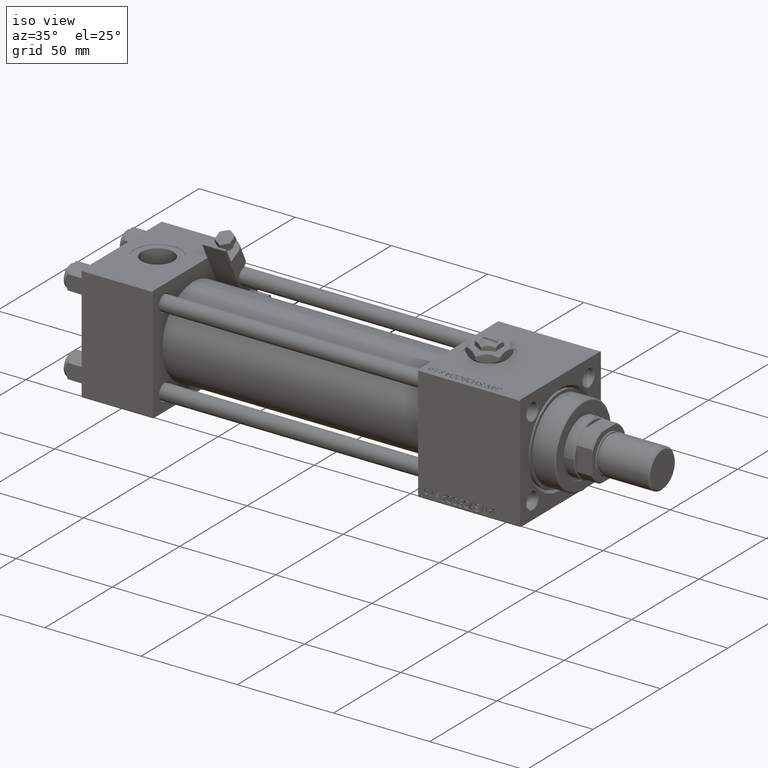
[diagram: clean part render]
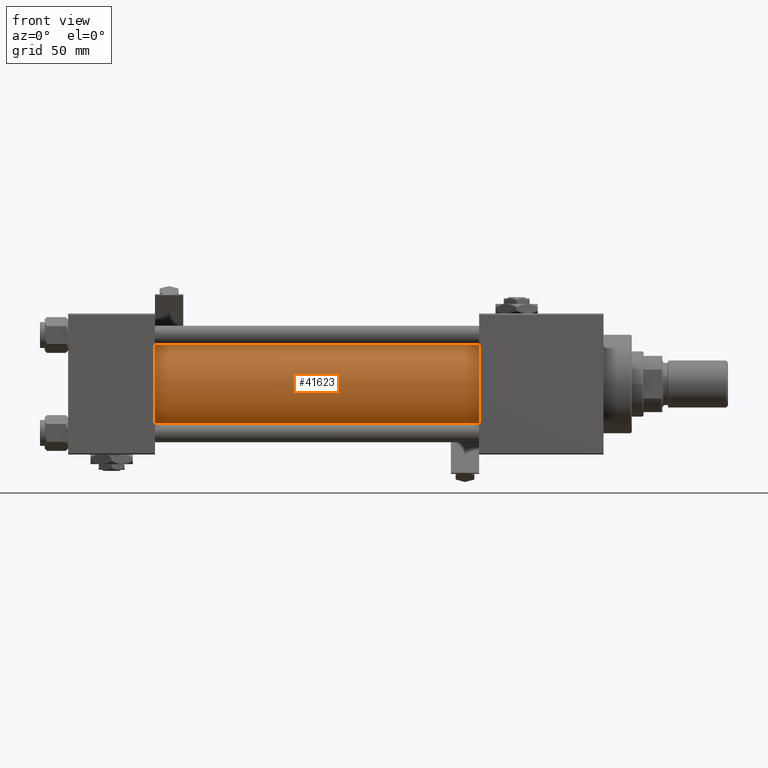
[diagram: tour spotlight — one face highlighted and labeled with its STEP entity id]
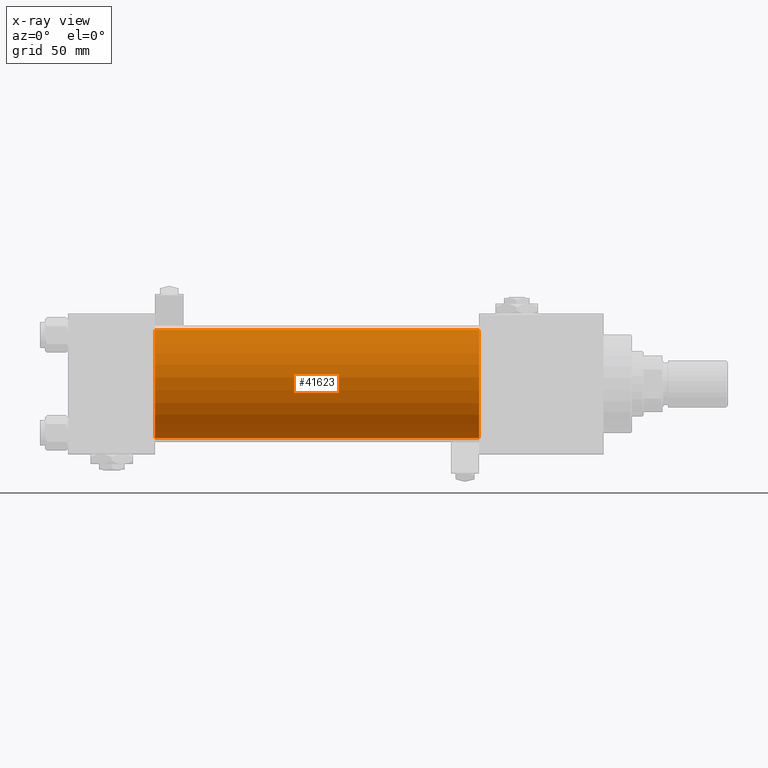
[diagram: x-ray of the same camera — body ghosted, this tour face saturated]
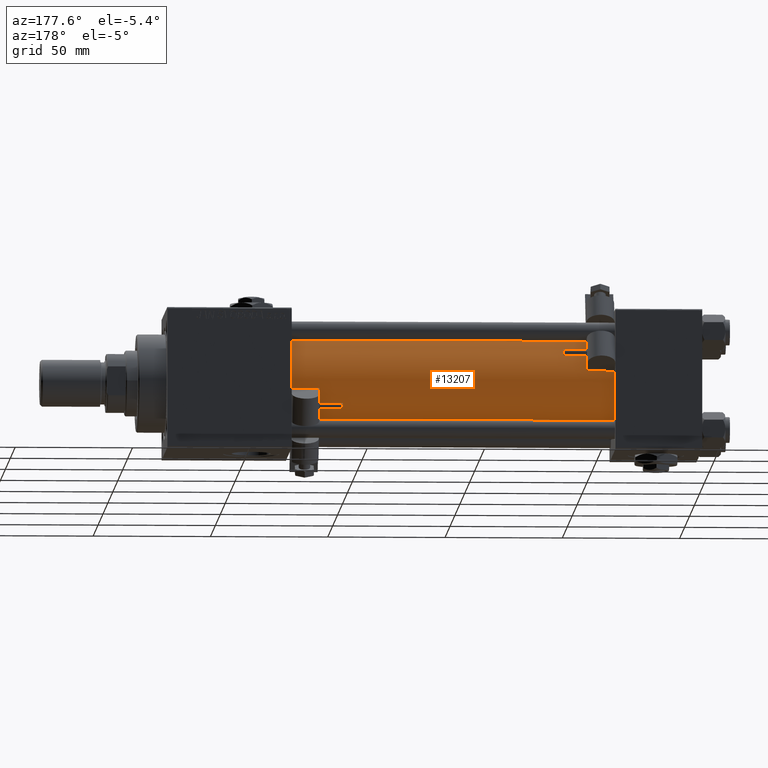
[diagram: tour spotlight — one face highlighted and labeled with its STEP entity id]
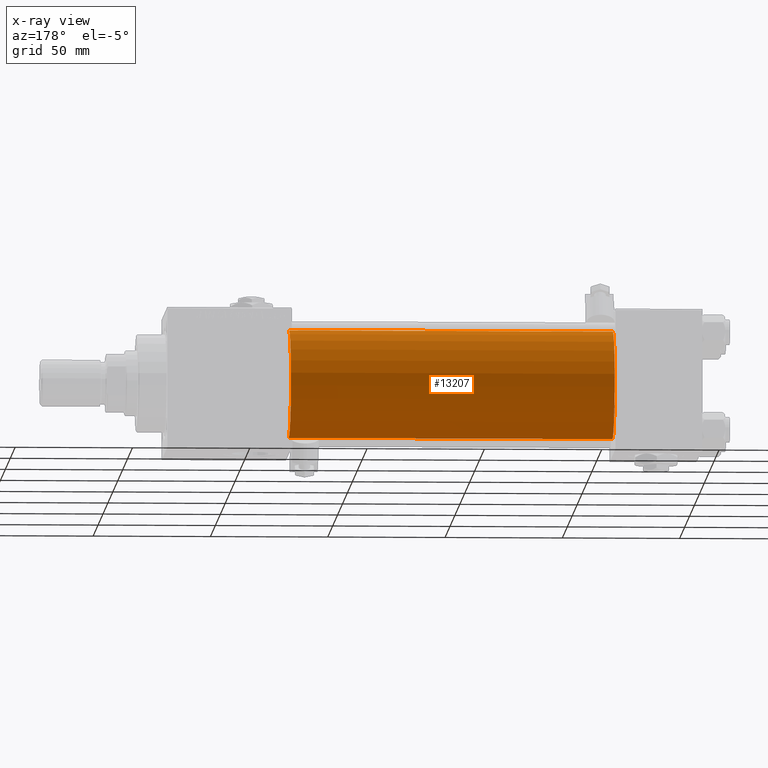
[diagram: x-ray of the same camera — body ghosted, this tour face saturated]
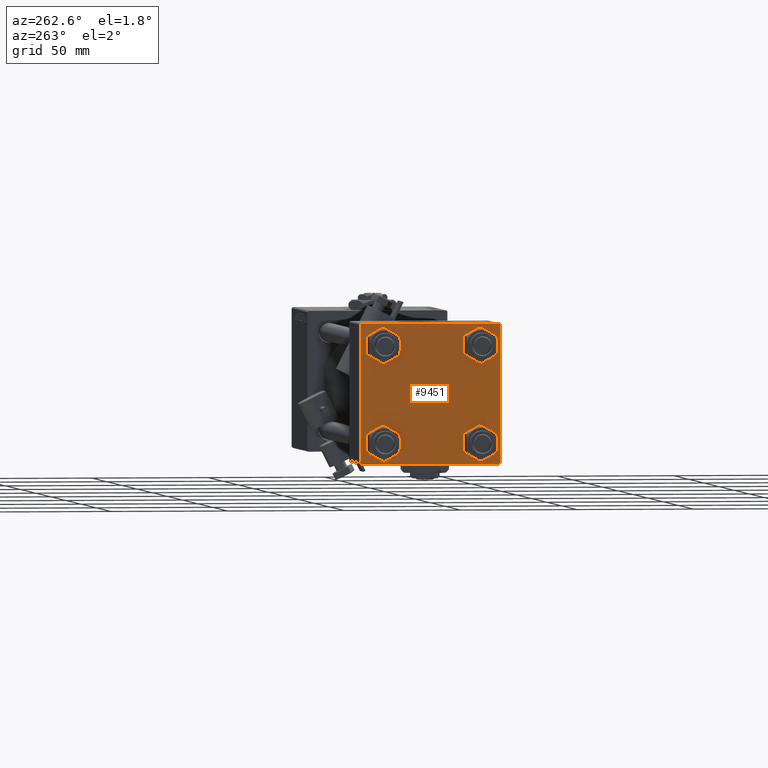
[diagram: tour spotlight — one face highlighted and labeled with its STEP entity id]
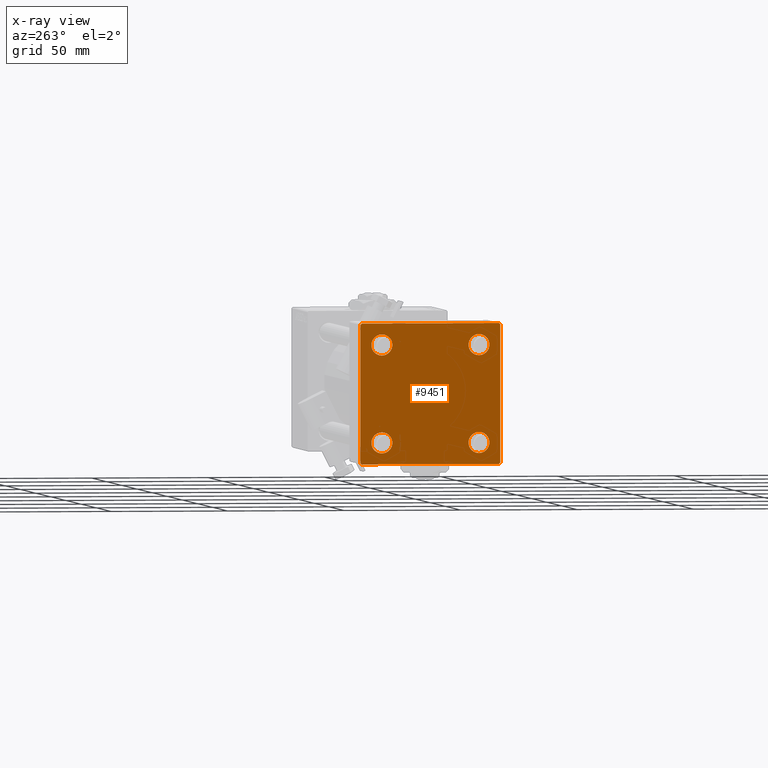
[diagram: x-ray of the same camera — body ghosted, this tour face saturated]
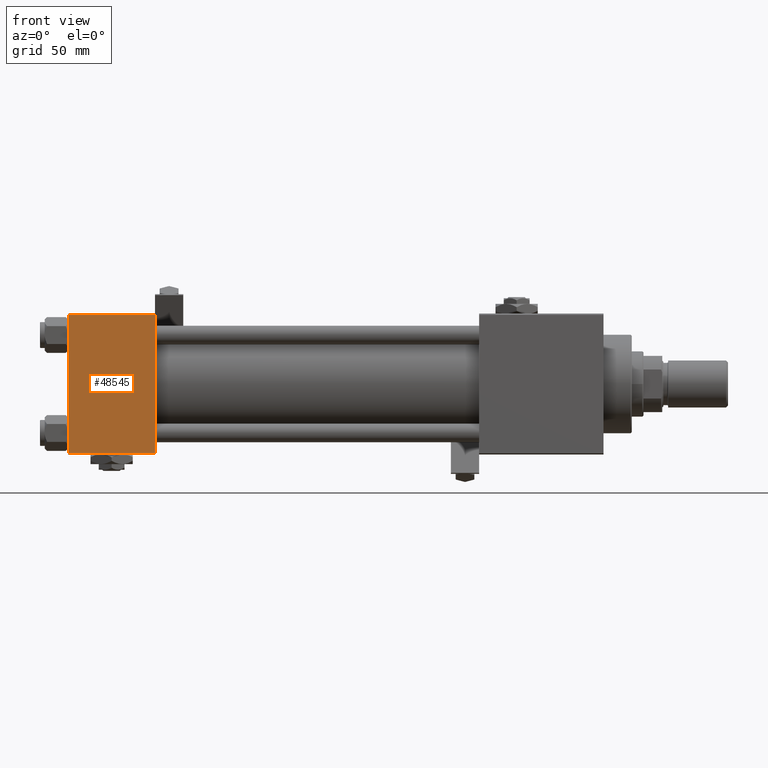
[diagram: tour spotlight — one face highlighted and labeled with its STEP entity id]
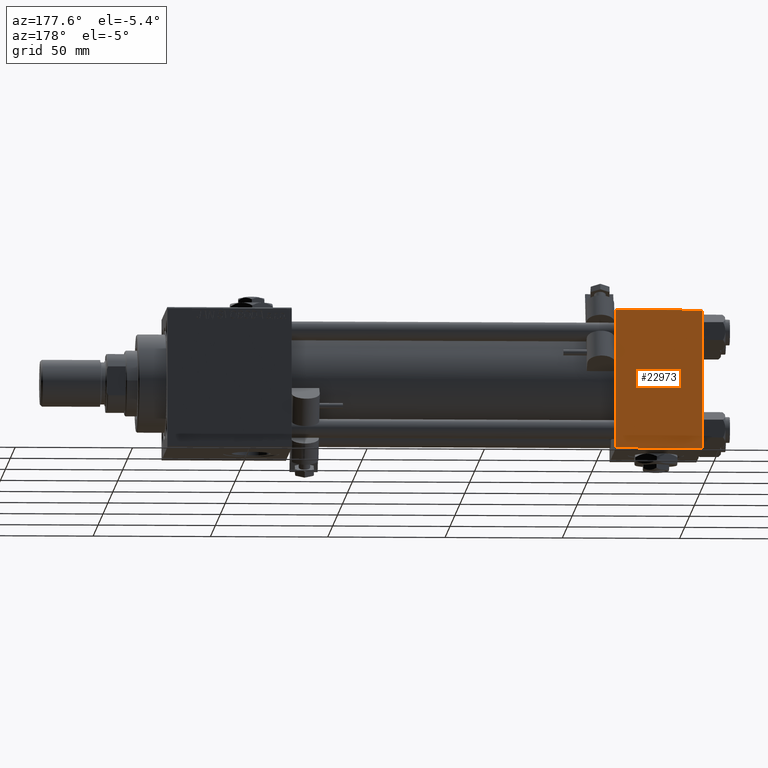
[diagram: tour spotlight — one face highlighted and labeled with its STEP entity id]
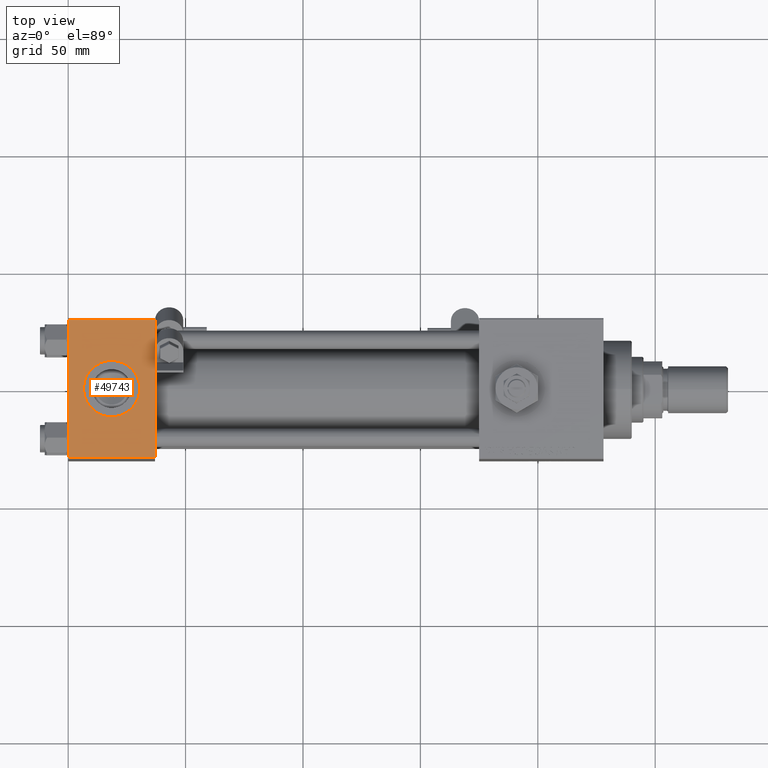
[diagram: tour spotlight — one face highlighted and labeled with its STEP entity id]
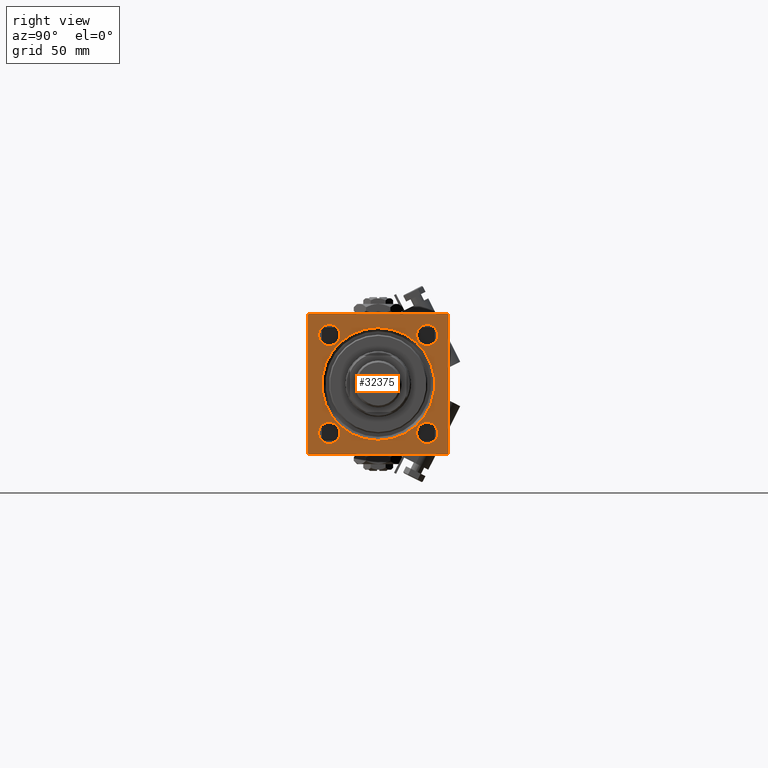
[diagram: tour spotlight — one face highlighted and labeled with its STEP entity id]
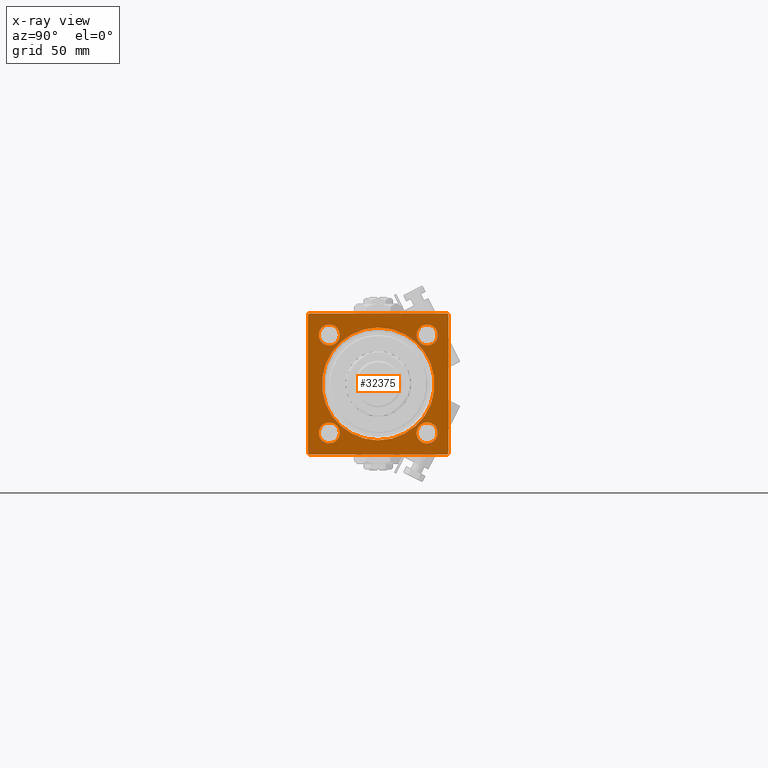
[diagram: x-ray of the same camera — body ghosted, this tour face saturated]
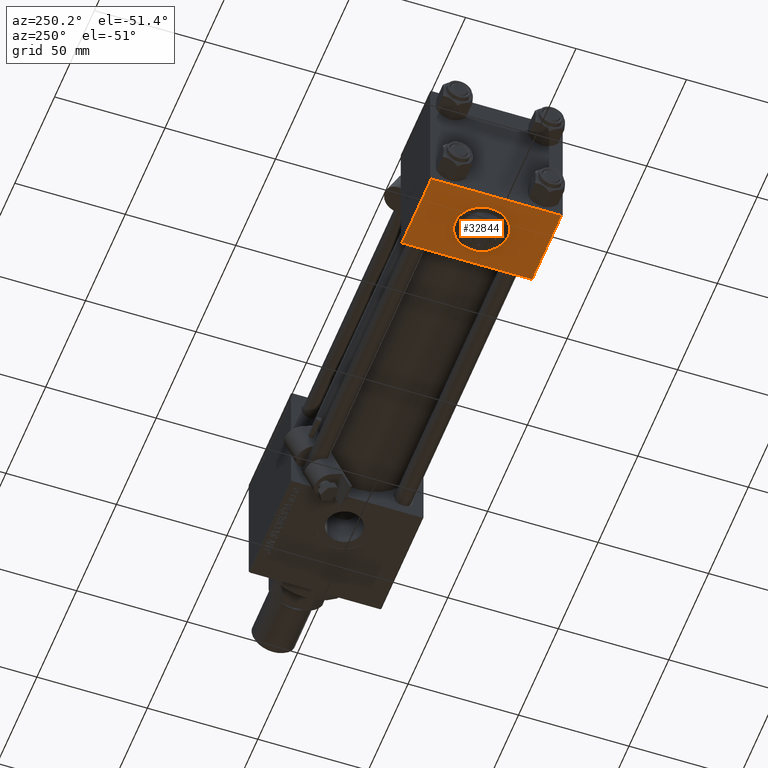
[diagram: tour spotlight — one face highlighted and labeled with its STEP entity id]
A machine part: a face-by-face anatomy tour. The part has 1328 B-rep faces; the first image is the clean iso view, then the 8 largest visible faces are spotlighted one at a time (largest first), each with its STEP entity span.

Face 1 — front view, entity #41623. An x-ray twin of the same camera follows (body ghosted, this face saturated) — the face is partly hidden behind the body. In plain terms, the highlighted cylindrical surface (partial cylindrical patch) has radius 23 mm, axis along (-1, -0, -0).
Definition (entity closure, byte-faithful):
#2063 = DIRECTION ( 'NONE',  ( 0.000000000000000000, 0.000000000000000000, 1.000000000000000000 ) ) ;
#3561 = CARTESIAN_POINT ( 'NONE',  ( 175.0000000000000284, -2.602085213965210642E-15, 0.000000000000000000 ) ) ;
#5475 = VERTEX_POINT ( 'NONE', #11040 ) ;
#5632 = ORIENTED_EDGE ( 'NONE', *, *, #33848, .T. ) ;
#6865 = EDGE_LOOP ( 'NONE', ( #52564, #23735, #5632, #9575 ) ) ;
#7371 = FACE_OUTER_BOUND ( 'NONE', #6865, .T. ) ;
#8100 = LINE ( 'NONE', #16794, #51992 ) ;
#8526 = EDGE_CURVE ( 'NONE', #21564, #5475, #8100, .T. ) ;
#8861 = DIRECTION ( 'NONE',  ( -1.000000000000000000, -0.000000000000000000, -0.000000000000000000 ) ) ;
#9575 = ORIENTED_EDGE ( 'NONE', *, *, #25959, .T. ) ;
#9608 = CARTESIAN_POINT ( 'NONE',  ( 175.0000000000000284, 2.146024240737016609E-16, -23.00000000000000000 ) ) ;
#11040 = CARTESIAN_POINT ( 'NONE',  ( 37.00000000000000711, 2.146024240737016609E-16, -23.00000000000000000 ) ) ;
#13024 = VERTEX_POINT ( 'NONE', #28178 ) ;
#16065 = CARTESIAN_POINT ( 'NONE',  ( 175.0000000000000284, -2.602085213965210642E-15, 0.000000000000000000 ) ) ;
#16794 = CARTESIAN_POINT ( 'NONE',  ( 175.0000000000000284, 2.146024240737016609E-16, -23.00000000000000000 ) ) ;
#21211 = DIRECTION ( 'NONE',  ( 1.000000000000000000, 0.000000000000000000, 0.000000000000000000 ) ) ;
#21564 = VERTEX_POINT ( 'NONE', #9608 ) ;
#23735 = ORIENTED_EDGE ( 'NONE', *, *, #37493, .F. ) ;
#24720 = VERTEX_POINT ( 'NONE', #43007 ) ;
#25959 = EDGE_CURVE ( 'NONE', #13024, #5475, #34423, .T. ) ;
#28178 = CARTESIAN_POINT ( 'NONE',  ( 37.00000000000000711, -2.602085213965210642E-15, 23.00000000000000000 ) ) ;
#28487 = DIRECTION ( 'NONE',  ( -1.000000000000000000, -0.000000000000000000, -0.000000000000000000 ) ) ;
#28635 = VECTOR ( 'NONE', #8861, 1000.000000000000000 ) ;
#29245 = CARTESIAN_POINT ( 'NONE',  ( 175.0000000000000284, -2.602085213965210642E-15, 23.00000000000000000 ) ) ;
#31571 = CYLINDRICAL_SURFACE ( 'NONE', #40142, 23.00000000000000000 ) ;
#31819 = AXIS2_PLACEMENT_3D ( 'NONE', #39318, #48539, #2063 ) ;
#33848 = EDGE_CURVE ( 'NONE', #24720, #13024, #45319, .T. ) ;
#34423 = CIRCLE ( 'NONE', #31819, 23.00000000000000000 ) ;
#36474 = DIRECTION ( 'NONE',  ( 0.000000000000000000, 0.000000000000000000, 1.000000000000000000 ) ) ;
#37493 = EDGE_CURVE ( 'NONE', #24720, #21564, #39208, .T. ) ;
#37506 = AXIS2_PLACEMENT_3D ( 'NONE', #3561, #21211, #37811 ) ;
#37811 = DIRECTION ( 'NONE',  ( 0.000000000000000000, 0.000000000000000000, -1.000000000000000000 ) ) ;
#39208 = CIRCLE ( 'NONE', #37506, 23.00000000000000000 ) ;
#39318 = CARTESIAN_POINT ( 'NONE',  ( 37.00000000000000711, -2.602085213965210642E-15, 0.000000000000000000 ) ) ;
#40142 = AXIS2_PLACEMENT_3D ( 'NONE', #16065, #40815, #36474 ) ;
#40815 = DIRECTION ( 'NONE',  ( -1.000000000000000000, -0.000000000000000000, -0.000000000000000000 ) ) ;
#41623 = ADVANCED_FACE ( 'NONE', ( #7371 ), #31571, .T. ) ;
#43007 = CARTESIAN_POINT ( 'NONE',  ( 175.0000000000000284, -2.602085213965210642E-15, 23.00000000000000000 ) ) ;
#45319 = LINE ( 'NONE', #29245, #28635 ) ;
#48539 = DIRECTION ( 'NONE',  ( 1.000000000000000000, -0.000000000000000000, 0.000000000000000000 ) ) ;
#51992 = VECTOR ( 'NONE', #28487, 1000.000000000000000 ) ;
#52564 = ORIENTED_EDGE ( 'NONE', *, *, #8526, .F. ) ;

Face 2 — auxiliary view, entity #13207. An x-ray twin of the same camera follows (body ghosted, this face saturated) — the face is partly hidden behind the body. In plain terms, the highlighted cylindrical surface (partial cylindrical patch) has radius 23 mm, axis along (-1, -0, -0).
Definition (entity closure, byte-faithful):
#436 = FACE_OUTER_BOUND ( 'NONE', #50572, .T. ) ;
#3758 = CIRCLE ( 'NONE', #23731, 23.00000000000000000 ) ;
#5475 = VERTEX_POINT ( 'NONE', #11040 ) ;
#8100 = LINE ( 'NONE', #16794, #51992 ) ;
#8526 = EDGE_CURVE ( 'NONE', #21564, #5475, #8100, .T. ) ;
#8861 = DIRECTION ( 'NONE',  ( -1.000000000000000000, -0.000000000000000000, -0.000000000000000000 ) ) ;
#9126 = CYLINDRICAL_SURFACE ( 'NONE', #20891, 23.00000000000000000 ) ;
#9194 = EDGE_CURVE ( 'NONE', #5475, #13024, #35527, .T. ) ;
#9508 = DIRECTION ( 'NONE',  ( 1.000000000000000000, -0.000000000000000000, 0.000000000000000000 ) ) ;
#9608 = CARTESIAN_POINT ( 'NONE',  ( 175.0000000000000284, 2.146024240737016609E-16, -23.00000000000000000 ) ) ;
#11040 = CARTESIAN_POINT ( 'NONE',  ( 37.00000000000000711, 2.146024240737016609E-16, -23.00000000000000000 ) ) ;
#11128 = CARTESIAN_POINT ( 'NONE',  ( 175.0000000000000284, -2.602085213965210642E-15, 0.000000000000000000 ) ) ;
#11391 = DIRECTION ( 'NONE',  ( 0.000000000000000000, 0.000000000000000000, -1.000000000000000000 ) ) ;
#13024 = VERTEX_POINT ( 'NONE', #28178 ) ;
#13207 = ADVANCED_FACE ( 'NONE', ( #436 ), #9126, .T. ) ;
#16794 = CARTESIAN_POINT ( 'NONE',  ( 175.0000000000000284, 2.146024240737016609E-16, -23.00000000000000000 ) ) ;
#19661 = EDGE_CURVE ( 'NONE', #21564, #24720, #3758, .T. ) ;
#20891 = AXIS2_PLACEMENT_3D ( 'NONE', #38234, #25698, #41513 ) ;
#21564 = VERTEX_POINT ( 'NONE', #9608 ) ;
#23203 = ORIENTED_EDGE ( 'NONE', *, *, #33848, .F. ) ;
#23731 = AXIS2_PLACEMENT_3D ( 'NONE', #11128, #48651, #11391 ) ;
#24720 = VERTEX_POINT ( 'NONE', #43007 ) ;
#25698 = DIRECTION ( 'NONE',  ( -1.000000000000000000, -0.000000000000000000, -0.000000000000000000 ) ) ;
#28178 = CARTESIAN_POINT ( 'NONE',  ( 37.00000000000000711, -2.602085213965210642E-15, 23.00000000000000000 ) ) ;
#28487 = DIRECTION ( 'NONE',  ( -1.000000000000000000, -0.000000000000000000, -0.000000000000000000 ) ) ;
#28635 = VECTOR ( 'NONE', #8861, 1000.000000000000000 ) ;
#29245 = CARTESIAN_POINT ( 'NONE',  ( 175.0000000000000284, -2.602085213965210642E-15, 23.00000000000000000 ) ) ;
#33698 = ORIENTED_EDGE ( 'NONE', *, *, #9194, .T. ) ;
#33848 = EDGE_CURVE ( 'NONE', #24720, #13024, #45319, .T. ) ;
#35317 = DIRECTION ( 'NONE',  ( 0.000000000000000000, 0.000000000000000000, 1.000000000000000000 ) ) ;
#35527 = CIRCLE ( 'NONE', #52884, 23.00000000000000000 ) ;
#37956 = ORIENTED_EDGE ( 'NONE', *, *, #19661, .F. ) ;
#38234 = CARTESIAN_POINT ( 'NONE',  ( 175.0000000000000284, -2.602085213965210642E-15, 0.000000000000000000 ) ) ;
#41513 = DIRECTION ( 'NONE',  ( 0.000000000000000000, 0.000000000000000000, 1.000000000000000000 ) ) ;
#43007 = CARTESIAN_POINT ( 'NONE',  ( 175.0000000000000284, -2.602085213965210642E-15, 23.00000000000000000 ) ) ;
#45319 = LINE ( 'NONE', #29245, #28635 ) ;
#46769 = CARTESIAN_POINT ( 'NONE',  ( 37.00000000000000711, -2.602085213965210642E-15, 0.000000000000000000 ) ) ;
#48651 = DIRECTION ( 'NONE',  ( 1.000000000000000000, 0.000000000000000000, 0.000000000000000000 ) ) ;
#50525 = ORIENTED_EDGE ( 'NONE', *, *, #8526, .T. ) ;
#50572 = EDGE_LOOP ( 'NONE', ( #37956, #50525, #33698, #23203 ) ) ;
#51992 = VECTOR ( 'NONE', #28487, 1000.000000000000000 ) ;
#52884 = AXIS2_PLACEMENT_3D ( 'NONE', #46769, #9508, #35317 ) ;

Face 3 — auxiliary view, entity #9451. An x-ray twin of the same camera follows (body ghosted, this face saturated) — the face is partly hidden behind the body. In plain terms, the highlighted planar face has unit normal (-1, 0, 0).
Definition (entity closure, byte-faithful):
#501 = CARTESIAN_POINT ( 'NONE',  ( 0.000000000000000000, -20.84999999999999076, 25.35000000000002274 ) ) ;
#786 = AXIS2_PLACEMENT_3D ( 'NONE', #50783, #39079, #38546 ) ;
#845 = DIRECTION ( 'NONE',  ( 0.000000000000000000, 0.000000000000000000, 1.000000000000000000 ) ) ;
#902 = CIRCLE ( 'NONE', #31272, 4.500000000000017764 ) ;
#936 = CARTESIAN_POINT ( 'NONE',  ( 0.000000000000000000, 20.84999999999999787, -20.85000000000000142 ) ) ;
#957 = EDGE_CURVE ( 'NONE', #36688, #16859, #10010, .T. ) ;
#1560 = FACE_BOUND ( 'NONE', #20993, .T. ) ;
#1750 = CIRCLE ( 'NONE', #27820, 4.500000000000017764 ) ;
#2224 = LINE ( 'NONE', #47909, #44960 ) ;
#2946 = CARTESIAN_POINT ( 'NONE',  ( 0.000000000000000000, 20.84999999999999787, -16.34999999999998366 ) ) ;
#2950 = DIRECTION ( 'NONE',  ( 0.000000000000000000, -0.7071067811865474617, 0.7071067811865474617 ) ) ;
#3194 = VECTOR ( 'NONE', #5944, 1000.000000000000000 ) ;
#3399 = EDGE_CURVE ( 'NONE', #19169, #40163, #2224, .T. ) ;
#4131 = VECTOR ( 'NONE', #5678, 1000.000000000000000 ) ;
#4400 = EDGE_CURVE ( 'NONE', #40163, #6892, #12803, .T. ) ;
#4502 = CARTESIAN_POINT ( 'NONE',  ( 0.000000000000000000, 29.74999999999999645, 29.74999999999999645 ) ) ;
#4879 = CARTESIAN_POINT ( 'NONE',  ( 0.000000000000000000, -30.00000000000000000, 29.99999999999999289 ) ) ;
#5085 = ORIENTED_EDGE ( 'NONE', *, *, #4400, .T. ) ;
#5288 = EDGE_CURVE ( 'NONE', #46355, #46383, #33613, .T. ) ;
#5318 = CIRCLE ( 'NONE', #37473, 4.500000000000017764 ) ;
#5628 = FACE_OUTER_BOUND ( 'NONE', #17185, .T. ) ;
#5678 = DIRECTION ( 'NONE',  ( 0.000000000000000000, 0.000000000000000000, -1.000000000000000000 ) ) ;
#5747 = DIRECTION ( 'NONE',  ( 1.000000000000000000, -0.000000000000000000, 0.000000000000000000 ) ) ;
#5766 = VERTEX_POINT ( 'NONE', #14256 ) ;
#5944 = DIRECTION ( 'NONE',  ( 0.000000000000000000, -1.000000000000000000, -1.156482317317871725E-16 ) ) ;
#6394 = AXIS2_PLACEMENT_3D ( 'NONE', #26400, #5747, #38929 ) ;
#6771 = CARTESIAN_POINT ( 'NONE',  ( 0.000000000000000000, 29.49999999999999289, 30.00000000000000000 ) ) ;
#6892 = VERTEX_POINT ( 'NONE', #39216 ) ;
#7052 = DIRECTION ( 'NONE',  ( 0.000000000000000000, 0.000000000000000000, 1.000000000000000000 ) ) ;
#7666 = CARTESIAN_POINT ( 'NONE',  ( 0.000000000000000000, 20.84999999999999787, 16.34999999999998366 ) ) ;
#8366 = EDGE_CURVE ( 'NONE', #6892, #41333, #23071, .T. ) ;
#8999 = DIRECTION ( 'NONE',  ( 1.000000000000000000, -0.000000000000000000, 0.000000000000000000 ) ) ;
#9170 = FACE_BOUND ( 'NONE', #42400, .T. ) ;
#9210 = CARTESIAN_POINT ( 'NONE',  ( 0.000000000000000000, 29.99999999999999289, 30.00000000000000000 ) ) ;
#9451 = ADVANCED_FACE ( 'NONE', ( #9170, #21678, #38807, #1560, #5628 ), #13794, .T. ) ;
#10010 = LINE ( 'NONE', #9210, #3194 ) ;
#10013 = ORIENTED_EDGE ( 'NONE', *, *, #34640, .T. ) ;
#10854 = LINE ( 'NONE', #42699, #52701 ) ;
#10959 = ORIENTED_EDGE ( 'NONE', *, *, #957, .F. ) ;
#12051 = EDGE_CURVE ( 'NONE', #34710, #19771, #902, .T. ) ;
#12558 = VERTEX_POINT ( 'NONE', #25047 ) ;
#12782 = AXIS2_PLACEMENT_3D ( 'NONE', #23876, #53266, #40473 ) ;
#12803 = LINE ( 'NONE', #32653, #18948 ) ;
#13115 = CIRCLE ( 'NONE', #14853, 4.500000000000017764 ) ;
#13428 = DIRECTION ( 'NONE',  ( 0.000000000000000000, 0.000000000000000000, 1.000000000000000000 ) ) ;
#13527 = CARTESIAN_POINT ( 'NONE',  ( 0.000000000000000000, -20.84999999999999076, 20.85000000000000497 ) ) ;
#13794 = PLANE ( 'NONE',  #786 ) ;
#14075 = DIRECTION ( 'NONE',  ( 1.000000000000000000, -0.000000000000000000, 0.000000000000000000 ) ) ;
#14256 = CARTESIAN_POINT ( 'NONE',  ( 0.000000000000000000, -20.84999999999999076, -25.35000000000002274 ) ) ;
#14853 = AXIS2_PLACEMENT_3D ( 'NONE', #16939, #50131, #38432 ) ;
#14909 = CARTESIAN_POINT ( 'NONE',  ( 0.000000000000000000, -29.75000000000001066, -29.75000000000001066 ) ) ;
#15268 = VERTEX_POINT ( 'NONE', #35843 ) ;
#16342 = AXIS2_PLACEMENT_3D ( 'NONE', #936, #34094, #13428 ) ;
#16617 = VECTOR ( 'NONE', #23888, 1000.000000000000000 ) ;
#16849 = ORIENTED_EDGE ( 'NONE', *, *, #36676, .T. ) ;
#16859 = VERTEX_POINT ( 'NONE', #44683 ) ;
#16939 = CARTESIAN_POINT ( 'NONE',  ( 0.000000000000000000, -20.84999999999999076, -20.85000000000000497 ) ) ;
#17185 = EDGE_LOOP ( 'NONE', ( #33890, #20896, #5085, #49629, #51844, #23090, #10959, #35597 ) ) ;
#18610 = EDGE_CURVE ( 'NONE', #30139, #19169, #53006, .T. ) ;
#18948 = VECTOR ( 'NONE', #25046, 1000.000000000000000 ) ;
#19169 = VERTEX_POINT ( 'NONE', #24235 ) ;
#19552 = CARTESIAN_POINT ( 'NONE',  ( 0.000000000000000000, -20.84999999999999076, 16.34999999999998721 ) ) ;
#19570 = EDGE_CURVE ( 'NONE', #15268, #25479, #20242, .T. ) ;
#19771 = VERTEX_POINT ( 'NONE', #501 ) ;
#20073 = EDGE_CURVE ( 'NONE', #40301, #16859, #10854, .T. ) ;
#20242 = CIRCLE ( 'NONE', #52390, 4.500000000000017764 ) ;
#20896 = ORIENTED_EDGE ( 'NONE', *, *, #3399, .T. ) ;
#20993 = EDGE_LOOP ( 'NONE', ( #36732, #10013 ) ) ;
#21678 = FACE_BOUND ( 'NONE', #35795, .T. ) ;
#21899 = EDGE_LOOP ( 'NONE', ( #38055, #35099 ) ) ;
#23071 = LINE ( 'NONE', #14909, #24184 ) ;
#23090 = ORIENTED_EDGE ( 'NONE', *, *, #20073, .T. ) ;
#23876 = CARTESIAN_POINT ( 'NONE',  ( 0.000000000000000000, 20.84999999999999787, -20.85000000000000142 ) ) ;
#23888 = DIRECTION ( 'NONE',  ( 0.000000000000000000, 0.000000000000000000, -1.000000000000000000 ) ) ;
#24184 = VECTOR ( 'NONE', #2950, 1000.000000000000114 ) ;
#24235 = CARTESIAN_POINT ( 'NONE',  ( 0.000000000000000000, 29.99999999999999289, -29.50000000000000000 ) ) ;
#24244 = EDGE_CURVE ( 'NONE', #40301, #41333, #25533, .T. ) ;
#24293 = CARTESIAN_POINT ( 'NONE',  ( 0.000000000000000000, -30.00000000000000000, -29.50000000000001776 ) ) ;
#25046 = DIRECTION ( 'NONE',  ( 0.000000000000000000, -1.000000000000000000, -1.156482317317871725E-16 ) ) ;
#25047 = CARTESIAN_POINT ( 'NONE',  ( 0.000000000000000000, -20.84999999999999076, -16.34999999999998721 ) ) ;
#25415 = DIRECTION ( 'NONE',  ( 0.000000000000000000, 0.7071067811865474617, -0.7071067811865474617 ) ) ;
#25479 = VERTEX_POINT ( 'NONE', #7666 ) ;
#25533 = LINE ( 'NONE', #4879, #4131 ) ;
#26400 = CARTESIAN_POINT ( 'NONE',  ( 0.000000000000000000, -20.84999999999999076, 20.85000000000000497 ) ) ;
#26605 = CARTESIAN_POINT ( 'NONE',  ( 0.000000000000000000, 29.99999999999999289, 29.50000000000000000 ) ) ;
#26742 = CIRCLE ( 'NONE', #16342, 4.500000000000017764 ) ;
#27695 = DIRECTION ( 'NONE',  ( 0.000000000000000000, 0.000000000000000000, 1.000000000000000000 ) ) ;
#27820 = AXIS2_PLACEMENT_3D ( 'NONE', #30188, #8999, #845 ) ;
#29039 = CARTESIAN_POINT ( 'NONE',  ( 0.000000000000000000, 29.99999999999999289, 30.00000000000000000 ) ) ;
#29628 = EDGE_CURVE ( 'NONE', #46383, #46355, #26742, .T. ) ;
#30139 = VERTEX_POINT ( 'NONE', #26605 ) ;
#30188 = CARTESIAN_POINT ( 'NONE',  ( 0.000000000000000000, 20.84999999999999787, 20.85000000000000142 ) ) ;
#30652 = DIRECTION ( 'NONE',  ( 0.000000000000000000, 0.000000000000000000, 1.000000000000000000 ) ) ;
#31272 = AXIS2_PLACEMENT_3D ( 'NONE', #13527, #14075, #30652 ) ;
#31378 = VECTOR ( 'NONE', #25415, 1000.000000000000114 ) ;
#31761 = DIRECTION ( 'NONE',  ( 1.000000000000000000, -0.000000000000000000, 0.000000000000000000 ) ) ;
#32653 = CARTESIAN_POINT ( 'NONE',  ( 0.000000000000000000, 29.99999999999999289, -30.00000000000000000 ) ) ;
#33299 = ORIENTED_EDGE ( 'NONE', *, *, #39438, .T. ) ;
#33613 = CIRCLE ( 'NONE', #12782, 4.500000000000017764 ) ;
#33843 = LINE ( 'NONE', #4502, #31378 ) ;
#33890 = ORIENTED_EDGE ( 'NONE', *, *, #18610, .T. ) ;
#34094 = DIRECTION ( 'NONE',  ( 1.000000000000000000, -0.000000000000000000, 0.000000000000000000 ) ) ;
#34640 = EDGE_CURVE ( 'NONE', #25479, #15268, #1750, .T. ) ;
#34710 = VERTEX_POINT ( 'NONE', #19552 ) ;
#35099 = ORIENTED_EDGE ( 'NONE', *, *, #5288, .T. ) ;
#35217 = ORIENTED_EDGE ( 'NONE', *, *, #12051, .T. ) ;
#35250 = CARTESIAN_POINT ( 'NONE',  ( 0.000000000000000000, -30.00000000000000000, 29.49999999999999289 ) ) ;
#35597 = ORIENTED_EDGE ( 'NONE', *, *, #40561, .T. ) ;
#35795 = EDGE_LOOP ( 'NONE', ( #16849, #33299 ) ) ;
#35843 = CARTESIAN_POINT ( 'NONE',  ( 0.000000000000000000, 20.84999999999999787, 25.35000000000001918 ) ) ;
#35936 = DIRECTION ( 'NONE',  ( -0.000000000000000000, -0.7071067811865574537, -0.7071067811865376918 ) ) ;
#36676 = EDGE_CURVE ( 'NONE', #12558, #5766, #5318, .T. ) ;
#36688 = VERTEX_POINT ( 'NONE', #6771 ) ;
#36732 = ORIENTED_EDGE ( 'NONE', *, *, #19570, .T. ) ;
#37473 = AXIS2_PLACEMENT_3D ( 'NONE', #44011, #31761, #27695 ) ;
#38055 = ORIENTED_EDGE ( 'NONE', *, *, #29628, .T. ) ;
#38432 = DIRECTION ( 'NONE',  ( 0.000000000000000000, 0.000000000000000000, 1.000000000000000000 ) ) ;
#38546 = DIRECTION ( 'NONE',  ( -0.000000000000000000, 0.000000000000000000, 1.000000000000000000 ) ) ;
#38807 = FACE_BOUND ( 'NONE', #21899, .T. ) ;
#38889 = DIRECTION ( 'NONE',  ( -0.000000000000000000, 0.7071067811865474617, 0.7071067811865474617 ) ) ;
#38929 = DIRECTION ( 'NONE',  ( 0.000000000000000000, 0.000000000000000000, 1.000000000000000000 ) ) ;
#39079 = DIRECTION ( 'NONE',  ( -1.000000000000000000, 0.000000000000000000, -0.000000000000000000 ) ) ;
#39216 = CARTESIAN_POINT ( 'NONE',  ( 0.000000000000000000, -29.50000000000000000, -30.00000000000000711 ) ) ;
#39426 = CARTESIAN_POINT ( 'NONE',  ( 0.000000000000000000, 20.84999999999999787, 20.85000000000000142 ) ) ;
#39438 = EDGE_CURVE ( 'NONE', #5766, #12558, #13115, .T. ) ;
#40163 = VERTEX_POINT ( 'NONE', #46426 ) ;
#40171 = ORIENTED_EDGE ( 'NONE', *, *, #46433, .T. ) ;
#40301 = VERTEX_POINT ( 'NONE', #35250 ) ;
#40473 = DIRECTION ( 'NONE',  ( 0.000000000000000000, 0.000000000000000000, 1.000000000000000000 ) ) ;
#40561 = EDGE_CURVE ( 'NONE', #36688, #30139, #33843, .T. ) ;
#41333 = VERTEX_POINT ( 'NONE', #24293 ) ;
#42400 = EDGE_LOOP ( 'NONE', ( #40171, #35217 ) ) ;
#42699 = CARTESIAN_POINT ( 'NONE',  ( -0.000000000000000000, -29.74999999999999645, 29.74999999999999645 ) ) ;
#44011 = CARTESIAN_POINT ( 'NONE',  ( 0.000000000000000000, -20.84999999999999076, -20.85000000000000497 ) ) ;
#44683 = CARTESIAN_POINT ( 'NONE',  ( 0.000000000000000000, -29.49999999999998579, 29.99999999999999289 ) ) ;
#44960 = VECTOR ( 'NONE', #35936, 999.9999999999998863 ) ;
#46355 = VERTEX_POINT ( 'NONE', #51701 ) ;
#46383 = VERTEX_POINT ( 'NONE', #2946 ) ;
#46426 = CARTESIAN_POINT ( 'NONE',  ( 0.000000000000000000, 29.49999999999997868, -30.00000000000000000 ) ) ;
#46433 = EDGE_CURVE ( 'NONE', #19771, #34710, #53298, .T. ) ;
#47846 = DIRECTION ( 'NONE',  ( 1.000000000000000000, -0.000000000000000000, 0.000000000000000000 ) ) ;
#47909 = CARTESIAN_POINT ( 'NONE',  ( 0.000000000000000000, 29.74999999999957723, -29.75000000000040501 ) ) ;
#49629 = ORIENTED_EDGE ( 'NONE', *, *, #8366, .T. ) ;
#50131 = DIRECTION ( 'NONE',  ( 1.000000000000000000, -0.000000000000000000, 0.000000000000000000 ) ) ;
#50783 = CARTESIAN_POINT ( 'NONE',  ( 0.000000000000000000, 0.000000000000000000, 0.000000000000000000 ) ) ;
#51701 = CARTESIAN_POINT ( 'NONE',  ( 0.000000000000000000, 20.84999999999999787, -25.35000000000001918 ) ) ;
#51844 = ORIENTED_EDGE ( 'NONE', *, *, #24244, .F. ) ;
#52390 = AXIS2_PLACEMENT_3D ( 'NONE', #39426, #47846, #7052 ) ;
#52701 = VECTOR ( 'NONE', #38889, 1000.000000000000114 ) ;
#53006 = LINE ( 'NONE', #29039, #16617 ) ;
#53266 = DIRECTION ( 'NONE',  ( 1.000000000000000000, -0.000000000000000000, 0.000000000000000000 ) ) ;
#53298 = CIRCLE ( 'NONE', #6394, 4.500000000000017764 ) ;

Face 4 — front view, entity #48545. In plain terms, the highlighted planar face has unit normal (0, 1, 0).
Definition (entity closure, byte-faithful):
#430 = AXIS2_PLACEMENT_3D ( 'NONE', #9397, #10198, #21901 ) ;
#3313 = CARTESIAN_POINT ( 'NONE',  ( 37.00000000000000000, -30.00000000000000000, 29.99999999999999289 ) ) ;
#4131 = VECTOR ( 'NONE', #5678, 1000.000000000000000 ) ;
#4879 = CARTESIAN_POINT ( 'NONE',  ( 0.000000000000000000, -30.00000000000000000, 29.99999999999999289 ) ) ;
#5678 = DIRECTION ( 'NONE',  ( 0.000000000000000000, 0.000000000000000000, -1.000000000000000000 ) ) ;
#5853 = PLANE ( 'NONE',  #430 ) ;
#9397 = CARTESIAN_POINT ( 'NONE',  ( 37.00000000000000000, -30.00000000000000000, 29.99999999999999289 ) ) ;
#9405 = CARTESIAN_POINT ( 'NONE',  ( 37.00000000000000000, -30.00000000000000000, -29.50000000000001776 ) ) ;
#9498 = ORIENTED_EDGE ( 'NONE', *, *, #47453, .T. ) ;
#10198 = DIRECTION ( 'NONE',  ( -0.000000000000000000, 1.000000000000000000, 0.000000000000000000 ) ) ;
#12147 = ORIENTED_EDGE ( 'NONE', *, *, #19139, .F. ) ;
#12302 = VECTOR ( 'NONE', #34926, 1000.000000000000000 ) ;
#18090 = FACE_OUTER_BOUND ( 'NONE', #22022, .T. ) ;
#19139 = EDGE_CURVE ( 'NONE', #48226, #49747, #47915, .T. ) ;
#19468 = VECTOR ( 'NONE', #20625, 1000.000000000000000 ) ;
#19538 = LINE ( 'NONE', #32050, #19468 ) ;
#20625 = DIRECTION ( 'NONE',  ( 1.000000000000000000, 0.000000000000000000, 0.000000000000000000 ) ) ;
#21133 = VECTOR ( 'NONE', #36483, 1000.000000000000000 ) ;
#21901 = DIRECTION ( 'NONE',  ( 0.000000000000000000, -0.000000000000000000, 1.000000000000000000 ) ) ;
#22022 = EDGE_LOOP ( 'NONE', ( #29447, #9498, #12147, #45678 ) ) ;
#24244 = EDGE_CURVE ( 'NONE', #40301, #41333, #25533, .T. ) ;
#24293 = CARTESIAN_POINT ( 'NONE',  ( 0.000000000000000000, -30.00000000000000000, -29.50000000000001776 ) ) ;
#25533 = LINE ( 'NONE', #4879, #4131 ) ;
#26218 = LINE ( 'NONE', #46909, #12302 ) ;
#28779 = CARTESIAN_POINT ( 'NONE',  ( 37.00000000000000000, -30.00000000000000000, 29.49999999999999289 ) ) ;
#29447 = ORIENTED_EDGE ( 'NONE', *, *, #24244, .T. ) ;
#32050 = CARTESIAN_POINT ( 'NONE',  ( 37.00000000000000000, -30.00000000000000000, -29.50000000000001776 ) ) ;
#34926 = DIRECTION ( 'NONE',  ( -1.000000000000000000, 0.000000000000000000, 0.000000000000000000 ) ) ;
#35250 = CARTESIAN_POINT ( 'NONE',  ( 0.000000000000000000, -30.00000000000000000, 29.49999999999999289 ) ) ;
#36483 = DIRECTION ( 'NONE',  ( 0.000000000000000000, 0.000000000000000000, -1.000000000000000000 ) ) ;
#40301 = VERTEX_POINT ( 'NONE', #35250 ) ;
#41225 = EDGE_CURVE ( 'NONE', #48226, #40301, #26218, .T. ) ;
#41333 = VERTEX_POINT ( 'NONE', #24293 ) ;
#45678 = ORIENTED_EDGE ( 'NONE', *, *, #41225, .T. ) ;
#46909 = CARTESIAN_POINT ( 'NONE',  ( 37.00000000000000000, -30.00000000000000000, 29.49999999999999289 ) ) ;
#47453 = EDGE_CURVE ( 'NONE', #41333, #49747, #19538, .T. ) ;
#47915 = LINE ( 'NONE', #3313, #21133 ) ;
#48226 = VERTEX_POINT ( 'NONE', #28779 ) ;
#48545 = ADVANCED_FACE ( 'NONE', ( #18090 ), #5853, .F. ) ;
#49747 = VERTEX_POINT ( 'NONE', #9405 ) ;

Face 5 — auxiliary view, entity #22973. In plain terms, the highlighted planar face has unit normal (0, 1, 0).
Definition (entity closure, byte-faithful):
#2414 = LINE ( 'NONE', #27690, #42504 ) ;
#13951 = VERTEX_POINT ( 'NONE', #52543 ) ;
#14687 = PLANE ( 'NONE',  #17972 ) ;
#16617 = VECTOR ( 'NONE', #23888, 1000.000000000000000 ) ;
#17972 = AXIS2_PLACEMENT_3D ( 'NONE', #44051, #43523, #39713 ) ;
#18610 = EDGE_CURVE ( 'NONE', #30139, #19169, #53006, .T. ) ;
#19169 = VERTEX_POINT ( 'NONE', #24235 ) ;
#20463 = LINE ( 'NONE', #24275, #31854 ) ;
#20743 = DIRECTION ( 'NONE',  ( 0.000000000000000000, 0.000000000000000000, -1.000000000000000000 ) ) ;
#21001 = LINE ( 'NONE', #32424, #53584 ) ;
#22973 = ADVANCED_FACE ( 'NONE', ( #48135 ), #14687, .T. ) ;
#23888 = DIRECTION ( 'NONE',  ( 0.000000000000000000, 0.000000000000000000, -1.000000000000000000 ) ) ;
#24235 = CARTESIAN_POINT ( 'NONE',  ( 0.000000000000000000, 29.99999999999999289, -29.50000000000000000 ) ) ;
#24275 = CARTESIAN_POINT ( 'NONE',  ( 37.00000000000000000, 29.99999999999999289, -29.50000000000000000 ) ) ;
#26605 = CARTESIAN_POINT ( 'NONE',  ( 0.000000000000000000, 29.99999999999999289, 29.50000000000000000 ) ) ;
#27381 = EDGE_CURVE ( 'NONE', #38284, #19169, #20463, .T. ) ;
#27446 = EDGE_CURVE ( 'NONE', #13951, #38284, #21001, .T. ) ;
#27507 = ORIENTED_EDGE ( 'NONE', *, *, #27381, .T. ) ;
#27690 = CARTESIAN_POINT ( 'NONE',  ( 37.00000000000000000, 29.99999999999999289, 29.50000000000000000 ) ) ;
#29039 = CARTESIAN_POINT ( 'NONE',  ( 0.000000000000000000, 29.99999999999999289, 30.00000000000000000 ) ) ;
#30139 = VERTEX_POINT ( 'NONE', #26605 ) ;
#31854 = VECTOR ( 'NONE', #49562, 1000.000000000000000 ) ;
#32424 = CARTESIAN_POINT ( 'NONE',  ( 37.00000000000000000, 29.99999999999999289, 30.00000000000000000 ) ) ;
#32457 = EDGE_CURVE ( 'NONE', #30139, #13951, #2414, .T. ) ;
#38284 = VERTEX_POINT ( 'NONE', #42831 ) ;
#38887 = ORIENTED_EDGE ( 'NONE', *, *, #32457, .T. ) ;
#39713 = DIRECTION ( 'NONE',  ( 0.000000000000000000, -0.000000000000000000, 1.000000000000000000 ) ) ;
#42504 = VECTOR ( 'NONE', #44279, 1000.000000000000000 ) ;
#42677 = EDGE_LOOP ( 'NONE', ( #50612, #27507, #48895, #38887 ) ) ;
#42831 = CARTESIAN_POINT ( 'NONE',  ( 37.00000000000000000, 29.99999999999999289, -29.50000000000000000 ) ) ;
#43523 = DIRECTION ( 'NONE',  ( -0.000000000000000000, 1.000000000000000000, 0.000000000000000000 ) ) ;
#44051 = CARTESIAN_POINT ( 'NONE',  ( 37.00000000000000000, 29.99999999999999289, 30.00000000000000000 ) ) ;
#44279 = DIRECTION ( 'NONE',  ( 1.000000000000000000, 0.000000000000000000, 0.000000000000000000 ) ) ;
#48135 = FACE_OUTER_BOUND ( 'NONE', #42677, .T. ) ;
#48895 = ORIENTED_EDGE ( 'NONE', *, *, #18610, .F. ) ;
#49562 = DIRECTION ( 'NONE',  ( -1.000000000000000000, 0.000000000000000000, 0.000000000000000000 ) ) ;
#50612 = ORIENTED_EDGE ( 'NONE', *, *, #27446, .T. ) ;
#52543 = CARTESIAN_POINT ( 'NONE',  ( 37.00000000000000000, 29.99999999999999289, 29.50000000000000000 ) ) ;
#53006 = LINE ( 'NONE', #29039, #16617 ) ;
#53584 = VECTOR ( 'NONE', #20743, 1000.000000000000000 ) ;

Face 6 — top view, entity #49743. In plain terms, the highlighted planar face has unit normal (0, 0, -1).
Definition (entity closure, byte-faithful):
#779 = DIRECTION ( 'NONE',  ( 0.000000000000000000, -1.000000000000000000, -1.156482317317871725E-16 ) ) ;
#823 = DIRECTION ( 'NONE',  ( 0.000000000000000000, 0.000000000000000000, 1.000000000000000000 ) ) ;
#957 = EDGE_CURVE ( 'NONE', #36688, #16859, #10010, .T. ) ;
#1991 = CARTESIAN_POINT ( 'NONE',  ( 37.00000000000000000, -29.50000000000000000, 29.99999999999999289 ) ) ;
#2772 = EDGE_CURVE ( 'NONE', #9957, #19995, #6773, .T. ) ;
#2800 = EDGE_LOOP ( 'NONE', ( #7476, #17022, #28148, #4303 ) ) ;
#3194 = VECTOR ( 'NONE', #5944, 1000.000000000000000 ) ;
#3694 = EDGE_CURVE ( 'NONE', #30133, #36688, #39958, .T. ) ;
#4303 = ORIENTED_EDGE ( 'NONE', *, *, #3694, .T. ) ;
#5862 = PLANE ( 'NONE',  #9163 ) ;
#5944 = DIRECTION ( 'NONE',  ( 0.000000000000000000, -1.000000000000000000, -1.156482317317871725E-16 ) ) ;
#6596 = VECTOR ( 'NONE', #30269, 1000.000000000000000 ) ;
#6771 = CARTESIAN_POINT ( 'NONE',  ( 0.000000000000000000, 29.49999999999999289, 30.00000000000000000 ) ) ;
#6773 = CIRCLE ( 'NONE', #35407, 12.00000000000000000 ) ;
#7476 = ORIENTED_EDGE ( 'NONE', *, *, #957, .T. ) ;
#9163 = AXIS2_PLACEMENT_3D ( 'NONE', #9673, #46654, #51553 ) ;
#9210 = CARTESIAN_POINT ( 'NONE',  ( 0.000000000000000000, 29.99999999999999289, 30.00000000000000000 ) ) ;
#9673 = CARTESIAN_POINT ( 'NONE',  ( 37.00000000000000000, 29.99999999999999289, 30.00000000000000000 ) ) ;
#9957 = VERTEX_POINT ( 'NONE', #15053 ) ;
#9994 = LINE ( 'NONE', #46448, #20886 ) ;
#10010 = LINE ( 'NONE', #9210, #3194 ) ;
#10589 = CARTESIAN_POINT ( 'NONE',  ( 0.000000000000000000, 29.49999999999999289, 30.00000000000000000 ) ) ;
#11025 = CARTESIAN_POINT ( 'NONE',  ( 37.00000000000000000, -29.49999999999998579, 29.99999999999999289 ) ) ;
#12271 = CIRCLE ( 'NONE', #49609, 12.00000000000000000 ) ;
#12538 = CARTESIAN_POINT ( 'NONE',  ( 6.499999999999997335, -1.999870792976790833E-15, 29.99999999999999645 ) ) ;
#13055 = CARTESIAN_POINT ( 'NONE',  ( 18.50000000000000000, -3.469446951953614978E-15, 29.99999999999999645 ) ) ;
#13993 = ORIENTED_EDGE ( 'NONE', *, *, #2772, .F. ) ;
#15053 = CARTESIAN_POINT ( 'NONE',  ( 30.50000000000000000, -3.469446951953614978E-15, 29.99999999999999645 ) ) ;
#16859 = VERTEX_POINT ( 'NONE', #44683 ) ;
#17022 = ORIENTED_EDGE ( 'NONE', *, *, #50030, .T. ) ;
#17683 = EDGE_CURVE ( 'NONE', #19995, #9957, #12271, .T. ) ;
#19995 = VERTEX_POINT ( 'NONE', #12538 ) ;
#20886 = VECTOR ( 'NONE', #779, 1000.000000000000000 ) ;
#22541 = CARTESIAN_POINT ( 'NONE',  ( 37.00000000000000000, 29.49999999999999289, 30.00000000000000000 ) ) ;
#22981 = EDGE_LOOP ( 'NONE', ( #13993, #31429 ) ) ;
#26630 = DIRECTION ( 'NONE',  ( -1.000000000000000000, 0.000000000000000000, 0.000000000000000000 ) ) ;
#27833 = DIRECTION ( 'NONE',  ( 0.000000000000000000, 0.000000000000000000, 1.000000000000000000 ) ) ;
#28148 = ORIENTED_EDGE ( 'NONE', *, *, #34795, .F. ) ;
#30050 = FACE_BOUND ( 'NONE', #22981, .T. ) ;
#30133 = VERTEX_POINT ( 'NONE', #22541 ) ;
#30269 = DIRECTION ( 'NONE',  ( 1.000000000000000000, 0.000000000000000000, 0.000000000000000000 ) ) ;
#31429 = ORIENTED_EDGE ( 'NONE', *, *, #17683, .F. ) ;
#33659 = VECTOR ( 'NONE', #26630, 1000.000000000000000 ) ;
#34401 = FACE_OUTER_BOUND ( 'NONE', #2800, .T. ) ;
#34795 = EDGE_CURVE ( 'NONE', #30133, #43226, #9994, .T. ) ;
#35407 = AXIS2_PLACEMENT_3D ( 'NONE', #13055, #823, #37813 ) ;
#36539 = DIRECTION ( 'NONE',  ( 1.000000000000000000, 0.000000000000000000, 0.000000000000000000 ) ) ;
#36688 = VERTEX_POINT ( 'NONE', #6771 ) ;
#37813 = DIRECTION ( 'NONE',  ( 1.000000000000000000, 0.000000000000000000, 0.000000000000000000 ) ) ;
#39958 = LINE ( 'NONE', #10589, #33659 ) ;
#42788 = LINE ( 'NONE', #1991, #6596 ) ;
#43226 = VERTEX_POINT ( 'NONE', #11025 ) ;
#44683 = CARTESIAN_POINT ( 'NONE',  ( 0.000000000000000000, -29.49999999999998579, 29.99999999999999289 ) ) ;
#46448 = CARTESIAN_POINT ( 'NONE',  ( 37.00000000000000000, 29.99999999999999289, 30.00000000000000000 ) ) ;
#46654 = DIRECTION ( 'NONE',  ( 0.000000000000000000, 1.156482317317871725E-16, -1.000000000000000000 ) ) ;
#48509 = CARTESIAN_POINT ( 'NONE',  ( 18.50000000000000000, -3.469446951953614978E-15, 29.99999999999999645 ) ) ;
#49609 = AXIS2_PLACEMENT_3D ( 'NONE', #48509, #27833, #36539 ) ;
#49743 = ADVANCED_FACE ( 'NONE', ( #30050, #34401 ), #5862, .F. ) ;
#50030 = EDGE_CURVE ( 'NONE', #16859, #43226, #42788, .T. ) ;
#51553 = DIRECTION ( 'NONE',  ( 0.000000000000000000, 1.000000000000000000, 1.156482317317871725E-16 ) ) ;

Face 7 — right view, entity #32375. An x-ray twin of the same camera follows (body ghosted, this face saturated) — the face is partly hidden behind the body. In plain terms, the highlighted planar face has unit normal (-1, 0, 0).
Definition (entity closure, byte-faithful):
#52 = DIRECTION ( 'NONE',  ( 0.000000000000000000, -1.000000000000000000, -1.156482317317871478E-16 ) ) ;
#114 = AXIS2_PLACEMENT_3D ( 'NONE', #51514, #6363, #17786 ) ;
#945 = AXIS2_PLACEMENT_3D ( 'NONE', #12613, #46058, #16427 ) ;
#1017 = CARTESIAN_POINT ( 'NONE',  ( 228.0000000000000000, 0.000000000000000000, 0.000000000000000000 ) ) ;
#1636 = VERTEX_POINT ( 'NONE', #38719 ) ;
#1739 = ORIENTED_EDGE ( 'NONE', *, *, #33183, .T. ) ;
#1815 = CARTESIAN_POINT ( 'NONE',  ( 228.0000000000000000, 30.00000000000000000, -29.49999999999995026 ) ) ;
#2090 = AXIS2_PLACEMENT_3D ( 'NONE', #34452, #47504, #43158 ) ;
#2478 = LINE ( 'NONE', #36180, #5827 ) ;
#2538 = CARTESIAN_POINT ( 'NONE',  ( 228.0000000000000000, -20.85000000000000142, -25.35000000000000497 ) ) ;
#2641 = CARTESIAN_POINT ( 'NONE',  ( 228.0000000000000000, -30.00000000000000000, 29.49999999999999289 ) ) ;
#2750 = DIRECTION ( 'NONE',  ( 0.000000000000000000, -0.7071067811865279218, 0.7071067811865671127 ) ) ;
#3650 = VERTEX_POINT ( 'NONE', #13871 ) ;
#4008 = VERTEX_POINT ( 'NONE', #2641 ) ;
#4755 = VERTEX_POINT ( 'NONE', #48917 ) ;
#5412 = CARTESIAN_POINT ( 'NONE',  ( 228.0000000000000000, 2.939152317953647500E-15, 23.99999999999999645 ) ) ;
#5661 = DIRECTION ( 'NONE',  ( 0.000000000000000000, 0.000000000000000000, 1.000000000000000000 ) ) ;
#5787 = ORIENTED_EDGE ( 'NONE', *, *, #10321, .F. ) ;
#5827 = VECTOR ( 'NONE', #2750, 1000.000000000000000 ) ;
#6211 = CIRCLE ( 'NONE', #34891, 4.500000000000003553 ) ;
#6284 = EDGE_LOOP ( 'NONE', ( #19846, #17588, #40588, #47186, #5787, #7951, #31901, #1739 ) ) ;
#6292 = DIRECTION ( 'NONE',  ( 0.000000000000000000, 0.7071067811865279218, -0.7071067811865671127 ) ) ;
#6363 = DIRECTION ( 'NONE',  ( -1.000000000000000000, 0.000000000000000000, -0.000000000000000000 ) ) ;
#6808 = DIRECTION ( 'NONE',  ( -1.000000000000000000, 0.000000000000000000, -0.000000000000000000 ) ) ;
#6916 = EDGE_LOOP ( 'NONE', ( #30414, #28662 ) ) ;
#7130 = EDGE_LOOP ( 'NONE', ( #34362, #29465 ) ) ;
#7299 = DIRECTION ( 'NONE',  ( -0.000000000000000000, 0.000000000000000000, 1.000000000000000000 ) ) ;
#7951 = ORIENTED_EDGE ( 'NONE', *, *, #27521, .T. ) ;
#8414 = VERTEX_POINT ( 'NONE', #11368 ) ;
#8553 = DIRECTION ( 'NONE',  ( 0.000000000000000000, 0.000000000000000000, 1.000000000000000000 ) ) ;
#8637 = VERTEX_POINT ( 'NONE', #1815 ) ;
#8745 = CARTESIAN_POINT ( 'NONE',  ( 228.0000000000000000, -20.84999999999999432, 25.35000000000000497 ) ) ;
#9796 = EDGE_CURVE ( 'NONE', #3650, #8637, #36871, .T. ) ;
#10321 = EDGE_CURVE ( 'NONE', #38999, #8637, #28502, .T. ) ;
#10400 = EDGE_LOOP ( 'NONE', ( #19155, #18255 ) ) ;
#10464 = VERTEX_POINT ( 'NONE', #21954 ) ;
#11368 = CARTESIAN_POINT ( 'NONE',  ( 228.0000000000000000, -20.84999999999999432, 16.34999999999999787 ) ) ;
#11572 = EDGE_CURVE ( 'NONE', #4008, #47169, #44358, .T. ) ;
#11757 = VECTOR ( 'NONE', #39803, 1000.000000000000000 ) ;
#12279 = VERTEX_POINT ( 'NONE', #16754 ) ;
#12613 = CARTESIAN_POINT ( 'NONE',  ( 228.0000000000000000, 20.84999999999999787, 20.85000000000000142 ) ) ;
#12738 = AXIS2_PLACEMENT_3D ( 'NONE', #44194, #27603, #8553 ) ;
#13303 = AXIS2_PLACEMENT_3D ( 'NONE', #39711, #6808, #40247 ) ;
#13569 = EDGE_CURVE ( 'NONE', #27192, #4755, #45231, .T. ) ;
#13871 = CARTESIAN_POINT ( 'NONE',  ( 228.0000000000000000, 29.50000000000000000, -29.99999999999999289 ) ) ;
#14310 = DIRECTION ( 'NONE',  ( 0.000000000000000000, 0.000000000000000000, 1.000000000000000000 ) ) ;
#14912 = PLANE ( 'NONE',  #53820 ) ;
#14927 = CIRCLE ( 'NONE', #25331, 4.500000000000003553 ) ;
#15229 = EDGE_LOOP ( 'NONE', ( #35483, #31214 ) ) ;
#15443 = DIRECTION ( 'NONE',  ( -1.000000000000000000, 0.000000000000000000, -0.000000000000000000 ) ) ;
#15896 = DIRECTION ( 'NONE',  ( -1.000000000000000000, 0.000000000000000000, -0.000000000000000000 ) ) ;
#15938 = CARTESIAN_POINT ( 'NONE',  ( 228.0000000000000000, 30.00000000000000000, 29.50000000000000000 ) ) ;
#15990 = CARTESIAN_POINT ( 'NONE',  ( 228.0000000000000000, 0.000000000000000000, 0.000000000000000000 ) ) ;
#16416 = EDGE_LOOP ( 'NONE', ( #44801, #18238 ) ) ;
#16427 = DIRECTION ( 'NONE',  ( 0.000000000000000000, 0.000000000000000000, 1.000000000000000000 ) ) ;
#16754 = CARTESIAN_POINT ( 'NONE',  ( 228.0000000000000000, -29.50000000000000000, 29.99999999999999289 ) ) ;
#16988 = CARTESIAN_POINT ( 'NONE',  ( 228.0000000000000000, 30.00000000000000000, -29.49999999999996447 ) ) ;
#17588 = ORIENTED_EDGE ( 'NONE', *, *, #27570, .T. ) ;
#17786 = DIRECTION ( 'NONE',  ( 0.000000000000000000, 0.000000000000000000, 1.000000000000000000 ) ) ;
#18238 = ORIENTED_EDGE ( 'NONE', *, *, #30591, .T. ) ;
#18255 = ORIENTED_EDGE ( 'NONE', *, *, #47630, .T. ) ;
#18328 = CARTESIAN_POINT ( 'NONE',  ( 228.0000000000000000, 20.84999999999999787, -25.35000000000000497 ) ) ;
#19155 = ORIENTED_EDGE ( 'NONE', *, *, #39797, .T. ) ;
#19435 = VERTEX_POINT ( 'NONE', #46506 ) ;
#19846 = ORIENTED_EDGE ( 'NONE', *, *, #11572, .T. ) ;
#20012 = DIRECTION ( 'NONE',  ( -0.000000000000000000, 0.7071067811865279218, 0.7071067811865672237 ) ) ;
#21511 = LINE ( 'NONE', #24523, #40870 ) ;
#21954 = CARTESIAN_POINT ( 'NONE',  ( 228.0000000000000000, 20.84999999999999787, -16.34999999999999787 ) ) ;
#21984 = DIRECTION ( 'NONE',  ( -1.000000000000000000, 0.000000000000000000, -0.000000000000000000 ) ) ;
#22014 = DIRECTION ( 'NONE',  ( 0.000000000000000000, 0.000000000000000000, 1.000000000000000000 ) ) ;
#22800 = VERTEX_POINT ( 'NONE', #8745 ) ;
#23146 = CARTESIAN_POINT ( 'NONE',  ( 228.0000000000000000, -30.00000000000000000, 29.49999999999999289 ) ) ;
#23365 = EDGE_CURVE ( 'NONE', #23613, #35331, #30968, .T. ) ;
#23613 = VERTEX_POINT ( 'NONE', #2538 ) ;
#23614 = FACE_BOUND ( 'NONE', #10400, .T. ) ;
#24523 = CARTESIAN_POINT ( 'NONE',  ( 228.0000000000000000, 30.00000000000000000, -29.99999999999999289 ) ) ;
#24854 = VERTEX_POINT ( 'NONE', #32906 ) ;
#25318 = CARTESIAN_POINT ( 'NONE',  ( 228.0000000000000000, -20.85000000000000142, -16.34999999999999787 ) ) ;
#25331 = AXIS2_PLACEMENT_3D ( 'NONE', #53171, #15896, #49068 ) ;
#25516 = CIRCLE ( 'NONE', #2090, 4.500000000000003553 ) ;
#26077 = CARTESIAN_POINT ( 'NONE',  ( 228.0000000000000000, -20.84999999999999432, 20.85000000000000142 ) ) ;
#27192 = VERTEX_POINT ( 'NONE', #33366 ) ;
#27484 = DIRECTION ( 'NONE',  ( -0.000000000000000000, -0.7071067811865474617, -0.7071067811865474617 ) ) ;
#27521 = EDGE_CURVE ( 'NONE', #38999, #19435, #2478, .T. ) ;
#27544 = CARTESIAN_POINT ( 'NONE',  ( 228.0000000000000000, 30.00000000000000000, 30.00000000000000000 ) ) ;
#27570 = EDGE_CURVE ( 'NONE', #47169, #1636, #51705, .T. ) ;
#27603 = DIRECTION ( 'NONE',  ( -1.000000000000000000, 0.000000000000000000, -0.000000000000000000 ) ) ;
#27681 = VECTOR ( 'NONE', #20012, 1000.000000000000000 ) ;
#28292 = DIRECTION ( 'NONE',  ( 0.000000000000000000, 0.000000000000000000, -1.000000000000000000 ) ) ;
#28502 = LINE ( 'NONE', #45104, #29454 ) ;
#28569 = CARTESIAN_POINT ( 'NONE',  ( 228.0000000000000000, -30.00000000000000000, 29.99999999999999289 ) ) ;
#28662 = ORIENTED_EDGE ( 'NONE', *, *, #42450, .T. ) ;
#29146 = AXIS2_PLACEMENT_3D ( 'NONE', #51890, #21984, #5661 ) ;
#29314 = VERTEX_POINT ( 'NONE', #5412 ) ;
#29454 = VECTOR ( 'NONE', #32855, 1000.000000000000000 ) ;
#29465 = ORIENTED_EDGE ( 'NONE', *, *, #45107, .T. ) ;
#30414 = ORIENTED_EDGE ( 'NONE', *, *, #52508, .T. ) ;
#30591 = EDGE_CURVE ( 'NONE', #29314, #24854, #39830, .T. ) ;
#30968 = CIRCLE ( 'NONE', #12738, 4.500000000000003553 ) ;
#31214 = ORIENTED_EDGE ( 'NONE', *, *, #37360, .T. ) ;
#31901 = ORIENTED_EDGE ( 'NONE', *, *, #52096, .T. ) ;
#32375 = ADVANCED_FACE ( 'NONE', ( #52449, #48896, #40471, #23614, #40742, #52714 ), #14912, .F. ) ;
#32591 = AXIS2_PLACEMENT_3D ( 'NONE', #26077, #50312, #22014 ) ;
#32855 = DIRECTION ( 'NONE',  ( 0.000000000000000000, 0.000000000000000000, -1.000000000000000000 ) ) ;
#32875 = VERTEX_POINT ( 'NONE', #18328 ) ;
#32906 = CARTESIAN_POINT ( 'NONE',  ( 228.0000000000000000, 0.000000000000000000, -23.99999999999999645 ) ) ;
#33183 = EDGE_CURVE ( 'NONE', #12279, #4008, #52250, .T. ) ;
#33366 = CARTESIAN_POINT ( 'NONE',  ( 228.0000000000000000, 20.84999999999999787, 16.34999999999999787 ) ) ;
#33800 = VECTOR ( 'NONE', #27484, 1000.000000000000114 ) ;
#33845 = VECTOR ( 'NONE', #28292, 1000.000000000000000 ) ;
#34362 = ORIENTED_EDGE ( 'NONE', *, *, #13569, .T. ) ;
#34382 = CIRCLE ( 'NONE', #29146, 23.99999999999999645 ) ;
#34452 = CARTESIAN_POINT ( 'NONE',  ( 228.0000000000000000, 20.84999999999999787, -20.85000000000000142 ) ) ;
#34581 = AXIS2_PLACEMENT_3D ( 'NONE', #1017, #51582, #14310 ) ;
#34891 = AXIS2_PLACEMENT_3D ( 'NONE', #52791, #39014, #42822 ) ;
#35315 = EDGE_CURVE ( 'NONE', #3650, #1636, #21511, .T. ) ;
#35331 = VERTEX_POINT ( 'NONE', #25318 ) ;
#35483 = ORIENTED_EDGE ( 'NONE', *, *, #23365, .T. ) ;
#35982 = LINE ( 'NONE', #27544, #11757 ) ;
#36180 = CARTESIAN_POINT ( 'NONE',  ( 228.0000000000000000, 29.50000000000002487, 30.00000000000000000 ) ) ;
#36871 = LINE ( 'NONE', #16988, #27681 ) ;
#37360 = EDGE_CURVE ( 'NONE', #35331, #23613, #6211, .T. ) ;
#37868 = CARTESIAN_POINT ( 'NONE',  ( 228.0000000000000000, -30.00000000000000000, -29.49999999999998579 ) ) ;
#38719 = CARTESIAN_POINT ( 'NONE',  ( 228.0000000000000000, -29.50000000000002487, -30.00000000000000000 ) ) ;
#38999 = VERTEX_POINT ( 'NONE', #15938 ) ;
#39014 = DIRECTION ( 'NONE',  ( -1.000000000000000000, 0.000000000000000000, -0.000000000000000000 ) ) ;
#39711 = CARTESIAN_POINT ( 'NONE',  ( 228.0000000000000000, 20.84999999999999787, 20.85000000000000142 ) ) ;
#39797 = EDGE_CURVE ( 'NONE', #32875, #10464, #49602, .T. ) ;
#39803 = DIRECTION ( 'NONE',  ( 0.000000000000000000, -1.000000000000000000, -1.156482317317871478E-16 ) ) ;
#39830 = CIRCLE ( 'NONE', #34581, 23.99999999999999645 ) ;
#40247 = DIRECTION ( 'NONE',  ( 0.000000000000000000, 0.000000000000000000, 1.000000000000000000 ) ) ;
#40471 = FACE_BOUND ( 'NONE', #15229, .T. ) ;
#40588 = ORIENTED_EDGE ( 'NONE', *, *, #35315, .F. ) ;
#40742 = FACE_BOUND ( 'NONE', #16416, .T. ) ;
#40870 = VECTOR ( 'NONE', #52, 1000.000000000000000 ) ;
#42450 = EDGE_CURVE ( 'NONE', #22800, #8414, #14927, .T. ) ;
#42822 = DIRECTION ( 'NONE',  ( 0.000000000000000000, 0.000000000000000000, 1.000000000000000000 ) ) ;
#43158 = DIRECTION ( 'NONE',  ( 0.000000000000000000, 0.000000000000000000, 1.000000000000000000 ) ) ;
#43542 = CARTESIAN_POINT ( 'NONE',  ( 228.0000000000000000, -29.50000000000002487, -30.00000000000000000 ) ) ;
#44015 = VECTOR ( 'NONE', #6292, 1000.000000000000000 ) ;
#44194 = CARTESIAN_POINT ( 'NONE',  ( 228.0000000000000000, -20.85000000000000142, -20.85000000000000142 ) ) ;
#44358 = LINE ( 'NONE', #28569, #33845 ) ;
#44581 = CIRCLE ( 'NONE', #13303, 4.500000000000003553 ) ;
#44801 = ORIENTED_EDGE ( 'NONE', *, *, #50601, .T. ) ;
#45104 = CARTESIAN_POINT ( 'NONE',  ( 228.0000000000000000, 30.00000000000000000, 30.00000000000000000 ) ) ;
#45107 = EDGE_CURVE ( 'NONE', #4755, #27192, #44581, .T. ) ;
#45231 = CIRCLE ( 'NONE', #945, 4.500000000000003553 ) ;
#46058 = DIRECTION ( 'NONE',  ( -1.000000000000000000, 0.000000000000000000, -0.000000000000000000 ) ) ;
#46506 = CARTESIAN_POINT ( 'NONE',  ( 228.0000000000000000, 29.50000000000002487, 30.00000000000000000 ) ) ;
#47169 = VERTEX_POINT ( 'NONE', #37868 ) ;
#47186 = ORIENTED_EDGE ( 'NONE', *, *, #9796, .T. ) ;
#47504 = DIRECTION ( 'NONE',  ( -1.000000000000000000, 0.000000000000000000, -0.000000000000000000 ) ) ;
#47630 = EDGE_CURVE ( 'NONE', #10464, #32875, #25516, .T. ) ;
#48896 = FACE_BOUND ( 'NONE', #6916, .T. ) ;
#48917 = CARTESIAN_POINT ( 'NONE',  ( 228.0000000000000000, 20.84999999999999787, 25.35000000000000497 ) ) ;
#49068 = DIRECTION ( 'NONE',  ( 0.000000000000000000, 0.000000000000000000, 1.000000000000000000 ) ) ;
#49602 = CIRCLE ( 'NONE', #114, 4.500000000000003553 ) ;
#50312 = DIRECTION ( 'NONE',  ( -1.000000000000000000, 0.000000000000000000, -0.000000000000000000 ) ) ;
#50601 = EDGE_CURVE ( 'NONE', #24854, #29314, #34382, .T. ) ;
#50814 = CIRCLE ( 'NONE', #32591, 4.500000000000003553 ) ;
#51514 = CARTESIAN_POINT ( 'NONE',  ( 228.0000000000000000, 20.84999999999999787, -20.85000000000000142 ) ) ;
#51582 = DIRECTION ( 'NONE',  ( -1.000000000000000000, 0.000000000000000000, -0.000000000000000000 ) ) ;
#51705 = LINE ( 'NONE', #43542, #44015 ) ;
#51890 = CARTESIAN_POINT ( 'NONE',  ( 228.0000000000000000, 0.000000000000000000, 0.000000000000000000 ) ) ;
#52096 = EDGE_CURVE ( 'NONE', #19435, #12279, #35982, .T. ) ;
#52250 = LINE ( 'NONE', #23146, #33800 ) ;
#52449 = FACE_BOUND ( 'NONE', #7130, .T. ) ;
#52508 = EDGE_CURVE ( 'NONE', #8414, #22800, #50814, .T. ) ;
#52714 = FACE_OUTER_BOUND ( 'NONE', #6284, .T. ) ;
#52791 = CARTESIAN_POINT ( 'NONE',  ( 228.0000000000000000, -20.85000000000000142, -20.85000000000000142 ) ) ;
#53171 = CARTESIAN_POINT ( 'NONE',  ( 228.0000000000000000, -20.84999999999999432, 20.85000000000000142 ) ) ;
#53820 = AXIS2_PLACEMENT_3D ( 'NONE', #15990, #15443, #7299 ) ;

Face 8 — auxiliary view, entity #32844. In plain terms, the highlighted planar face has unit normal (0, 0, -1).
Definition (entity closure, byte-faithful):
#3333 = EDGE_CURVE ( 'NONE', #48875, #6892, #22361, .T. ) ;
#4400 = EDGE_CURVE ( 'NONE', #40163, #6892, #12803, .T. ) ;
#4644 = LINE ( 'NONE', #37288, #51370 ) ;
#5419 = EDGE_CURVE ( 'NONE', #10737, #48875, #21944, .T. ) ;
#6892 = VERTEX_POINT ( 'NONE', #39216 ) ;
#7987 = AXIS2_PLACEMENT_3D ( 'NONE', #14424, #18512, #39450 ) ;
#9445 = CARTESIAN_POINT ( 'NONE',  ( 37.00000000000000000, 29.99999999999999289, -30.00000000000000000 ) ) ;
#9863 = DIRECTION ( 'NONE',  ( 0.000000000000000000, -1.734723475976806848E-16, -1.000000000000000000 ) ) ;
#10178 = VECTOR ( 'NONE', #37740, 1000.000000000000000 ) ;
#10194 = CARTESIAN_POINT ( 'NONE',  ( 18.50000000000000355, 12.00000000000000355, -30.00000000000000711 ) ) ;
#10585 = CIRCLE ( 'NONE', #7987, 12.00000000000000178 ) ;
#10737 = VERTEX_POINT ( 'NONE', #25425 ) ;
#12803 = LINE ( 'NONE', #32653, #18948 ) ;
#13388 = ORIENTED_EDGE ( 'NONE', *, *, #42562, .F. ) ;
#13538 = ORIENTED_EDGE ( 'NONE', *, *, #34271, .F. ) ;
#13989 = DIRECTION ( 'NONE',  ( 0.000000000000000000, 1.156482317317871725E-16, -1.000000000000000000 ) ) ;
#14424 = CARTESIAN_POINT ( 'NONE',  ( 18.50000000000000355, 2.265018109976774967E-15, -30.00000000000000355 ) ) ;
#15217 = ORIENTED_EDGE ( 'NONE', *, *, #18239, .T. ) ;
#18239 = EDGE_CURVE ( 'NONE', #40163, #10737, #4644, .T. ) ;
#18512 = DIRECTION ( 'NONE',  ( 0.000000000000000000, -1.734723475976806848E-16, -1.000000000000000000 ) ) ;
#18948 = VECTOR ( 'NONE', #25046, 1000.000000000000000 ) ;
#19501 = ORIENTED_EDGE ( 'NONE', *, *, #5419, .T. ) ;
#20060 = EDGE_LOOP ( 'NONE', ( #13538, #13388 ) ) ;
#21944 = LINE ( 'NONE', #9445, #10178 ) ;
#22102 = CARTESIAN_POINT ( 'NONE',  ( 18.50000000000000355, 2.265018109976774967E-15, -30.00000000000000355 ) ) ;
#22361 = LINE ( 'NONE', #30776, #43220 ) ;
#25046 = DIRECTION ( 'NONE',  ( 0.000000000000000000, -1.000000000000000000, -1.156482317317871725E-16 ) ) ;
#25181 = AXIS2_PLACEMENT_3D ( 'NONE', #22102, #9863, #34877 ) ;
#25425 = CARTESIAN_POINT ( 'NONE',  ( 37.00000000000000000, 29.49999999999997868, -30.00000000000000000 ) ) ;
#25838 = VERTEX_POINT ( 'NONE', #39051 ) ;
#26757 = CARTESIAN_POINT ( 'NONE',  ( 37.00000000000000000, 29.99999999999999289, -30.00000000000000000 ) ) ;
#28371 = CARTESIAN_POINT ( 'NONE',  ( 37.00000000000000000, -29.50000000000000000, -30.00000000000000711 ) ) ;
#30776 = CARTESIAN_POINT ( 'NONE',  ( 0.000000000000000000, -29.50000000000001066, -30.00000000000000711 ) ) ;
#32653 = CARTESIAN_POINT ( 'NONE',  ( 0.000000000000000000, 29.99999999999999289, -30.00000000000000000 ) ) ;
#32844 = ADVANCED_FACE ( 'NONE', ( #37136, #53729 ), #49639, .T. ) ;
#34271 = EDGE_CURVE ( 'NONE', #39214, #25838, #44318, .T. ) ;
#34877 = DIRECTION ( 'NONE',  ( 0.000000000000000000, 1.000000000000000000, -2.891205793294677833E-16 ) ) ;
#37136 = FACE_BOUND ( 'NONE', #20060, .T. ) ;
#37288 = CARTESIAN_POINT ( 'NONE',  ( 37.00000000000000000, 29.49999999999997868, -30.00000000000000000 ) ) ;
#37740 = DIRECTION ( 'NONE',  ( 0.000000000000000000, -1.000000000000000000, -1.156482317317871725E-16 ) ) ;
#39051 = CARTESIAN_POINT ( 'NONE',  ( 18.50000000000000355, -12.00000000000000000, -30.00000000000000000 ) ) ;
#39214 = VERTEX_POINT ( 'NONE', #10194 ) ;
#39216 = CARTESIAN_POINT ( 'NONE',  ( 0.000000000000000000, -29.50000000000000000, -30.00000000000000711 ) ) ;
#39450 = DIRECTION ( 'NONE',  ( 0.000000000000000000, 1.000000000000000000, -2.891205793294677833E-16 ) ) ;
#39773 = EDGE_LOOP ( 'NONE', ( #49424, #15217, #19501, #48616 ) ) ;
#40163 = VERTEX_POINT ( 'NONE', #46426 ) ;
#42562 = EDGE_CURVE ( 'NONE', #25838, #39214, #10585, .T. ) ;
#43220 = VECTOR ( 'NONE', #47372, 1000.000000000000000 ) ;
#44318 = CIRCLE ( 'NONE', #25181, 12.00000000000000178 ) ;
#46426 = CARTESIAN_POINT ( 'NONE',  ( 0.000000000000000000, 29.49999999999997868, -30.00000000000000000 ) ) ;
#47372 = DIRECTION ( 'NONE',  ( -1.000000000000000000, 0.000000000000000000, 0.000000000000000000 ) ) ;
#47707 = AXIS2_PLACEMENT_3D ( 'NONE', #26757, #13989, #51519 ) ;
#48616 = ORIENTED_EDGE ( 'NONE', *, *, #3333, .T. ) ;
#48875 = VERTEX_POINT ( 'NONE', #28371 ) ;
#49424 = ORIENTED_EDGE ( 'NONE', *, *, #4400, .F. ) ;
#49639 = PLANE ( 'NONE',  #47707 ) ;
#51370 = VECTOR ( 'NONE', #53601, 1000.000000000000000 ) ;
#51519 = DIRECTION ( 'NONE',  ( 0.000000000000000000, 1.000000000000000000, 1.156482317317871725E-16 ) ) ;
#53601 = DIRECTION ( 'NONE',  ( 1.000000000000000000, 0.000000000000000000, 0.000000000000000000 ) ) ;
#53729 = FACE_OUTER_BOUND ( 'NONE', #39773, .T. ) ;